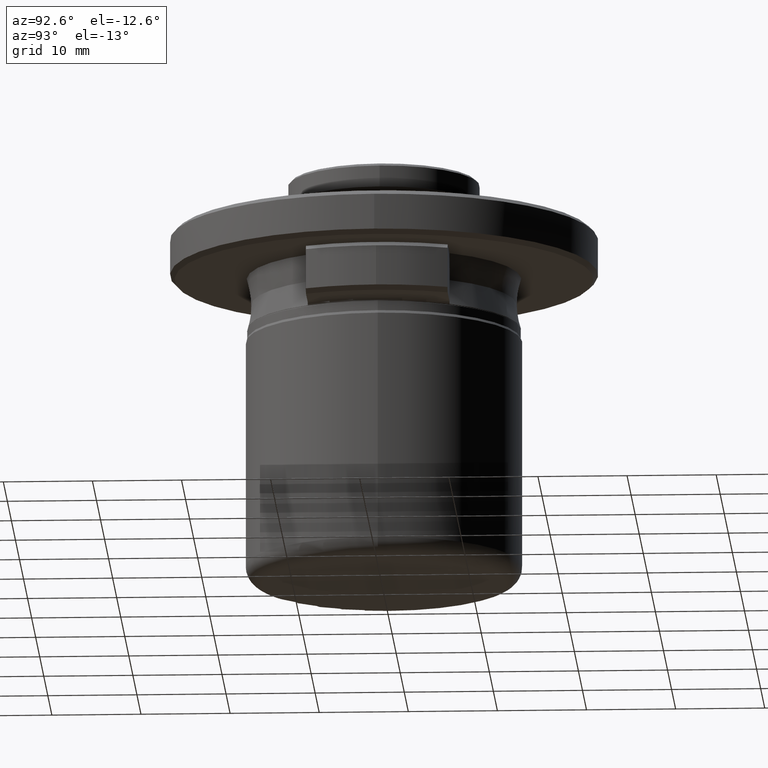
[diagram: clean part render]
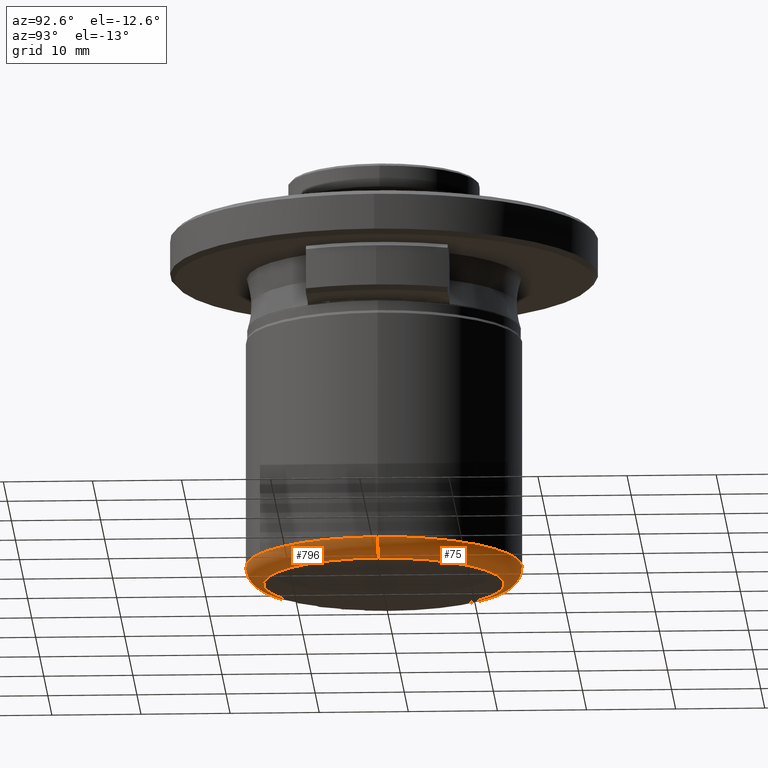
[diagram: same view with one multi-face feature highlighted, each face labeled with its STEP entity id]
A machine part, auxiliary view. The highlighted faces form ONE feature: a constant-radius fillet chain: 2 tangent blend faces with common blend radius 2 mm. The faces share edges in the B-rep.
Their STEP definitions:
[1] entity #75 (Torus):
#8 = VERTEX_POINT ( 'NONE', #242 ) ;
#43 = VERTEX_POINT ( 'NONE', #261 ) ;
#47 = CIRCLE ( 'NONE', #726, 13.50000000000000000 ) ;
#71 = AXIS2_PLACEMENT_3D ( 'NONE', #1226, #1512, #639 ) ;
#75 = ADVANCED_FACE ( 'NONE', ( #795 ), #881, .T. ) ;
#137 = DIRECTION ( 'NONE',  ( 1.000000000000000000, 0.0000000000000000000, 0.0000000000000000000 ) ) ;
#145 = ORIENTED_EDGE ( 'NONE', *, *, #869, .F. ) ;
#182 = EDGE_CURVE ( 'NONE', #1308, #43, #47, .T. ) ;
#228 = AXIS2_PLACEMENT_3D ( 'NONE', #1088, #428, #1633 ) ;
#242 = CARTESIAN_POINT ( 'NONE',  ( 15.50000000000000000, 0.0000000000000000000, -25.56151438499999900 ) ) ;
#261 = CARTESIAN_POINT ( 'NONE',  ( 13.50000000000000000, 0.0000000000000000000, -27.56151438499999900 ) ) ;
#329 = DIRECTION ( 'NONE',  ( -0.0000000000000000000, -0.0000000000000000000, -1.000000000000000000 ) ) ;
#351 = ORIENTED_EDGE ( 'NONE', *, *, #378, .F. ) ;
#378 = EDGE_CURVE ( 'NONE', #8, #1298, #1549, .T. ) ;
#381 = ORIENTED_EDGE ( 'NONE', *, *, #182, .F. ) ;
#428 = DIRECTION ( 'NONE',  ( 0.0000000000000000000, 0.0000000000000000000, 1.000000000000000000 ) ) ;
#480 = CARTESIAN_POINT ( 'NONE',  ( 0.0000000000000000000, 0.0000000000000000000, -25.56151438499999900 ) ) ;
#607 = CARTESIAN_POINT ( 'NONE',  ( -15.50000000000000000, 1.898202538678397600E-015, -25.56151438499999900 ) ) ;
#639 = DIRECTION ( 'NONE',  ( -1.000000000000000000, 1.224646799147353500E-016, 0.0000000000000000000 ) ) ;
#726 = AXIS2_PLACEMENT_3D ( 'NONE', #1010, #329, #1224 ) ;
#795 = FACE_OUTER_BOUND ( 'NONE', #1729, .T. ) ;
#869 = EDGE_CURVE ( 'NONE', #43, #8, #1494, .T. ) ;
#881 = TOROIDAL_SURFACE ( 'NONE', #228, 13.50000000000000000, 2.000000000000000000 ) ;
#990 = AXIS2_PLACEMENT_3D ( 'NONE', #480, #1213, #137 ) ;
#1010 = CARTESIAN_POINT ( 'NONE',  ( 0.0000000000000000000, 0.0000000000000000000, -27.56151438499999900 ) ) ;
#1021 = ORIENTED_EDGE ( 'NONE', *, *, #1736, .T. ) ;
#1088 = CARTESIAN_POINT ( 'NONE',  ( 0.0000000000000000000, 0.0000000000000000000, -25.56151438499999900 ) ) ;
#1213 = DIRECTION ( 'NONE',  ( 0.0000000000000000000, 0.0000000000000000000, 1.000000000000000000 ) ) ;
#1224 = DIRECTION ( 'NONE',  ( 1.000000000000000000, 0.0000000000000000000, 0.0000000000000000000 ) ) ;
#1226 = CARTESIAN_POINT ( 'NONE',  ( -13.50000000000000000, 1.653273178848926900E-015, -25.56151438499999900 ) ) ;
#1266 = CARTESIAN_POINT ( 'NONE',  ( 13.50000000000000000, 0.0000000000000000000, -25.56151438499999900 ) ) ;
#1298 = VERTEX_POINT ( 'NONE', #607 ) ;
#1308 = VERTEX_POINT ( 'NONE', #1920 ) ;
#1405 = AXIS2_PLACEMENT_3D ( 'NONE', #1266, #1485, #1856 ) ;
#1485 = DIRECTION ( 'NONE',  ( 0.0000000000000000000, -1.000000000000000000, 0.0000000000000000000 ) ) ;
#1494 = CIRCLE ( 'NONE', #1405, 2.000000000000001800 ) ;
#1512 = DIRECTION ( 'NONE',  ( 1.224646799147353200E-016, 1.000000000000000000, -0.0000000000000000000 ) ) ;
#1549 = CIRCLE ( 'NONE', #990, 15.50000000000000000 ) ;
#1633 = DIRECTION ( 'NONE',  ( 1.000000000000000000, 0.0000000000000000000, 0.0000000000000000000 ) ) ;
#1714 = CIRCLE ( 'NONE', #71, 2.000000000000000000 ) ;
#1729 = EDGE_LOOP ( 'NONE', ( #381, #1021, #351, #145 ) ) ;
#1736 = EDGE_CURVE ( 'NONE', #1308, #1298, #1714, .T. ) ;
#1856 = DIRECTION ( 'NONE',  ( 0.0000000000000000000, 0.0000000000000000000, -1.000000000000000000 ) ) ;
#1920 = CARTESIAN_POINT ( 'NONE',  ( -13.50000000000000000, 1.775737858763662000E-015, -27.56151438499999900 ) ) ;
[2] entity #796 (Torus):
#8 = VERTEX_POINT ( 'NONE', #242 ) ;
#43 = VERTEX_POINT ( 'NONE', #261 ) ;
#71 = AXIS2_PLACEMENT_3D ( 'NONE', #1226, #1512, #639 ) ;
#193 = ORIENTED_EDGE ( 'NONE', *, *, #421, .F. ) ;
#242 = CARTESIAN_POINT ( 'NONE',  ( 15.50000000000000000, 0.0000000000000000000, -25.56151438499999900 ) ) ;
#261 = CARTESIAN_POINT ( 'NONE',  ( 13.50000000000000000, 0.0000000000000000000, -27.56151438499999900 ) ) ;
#406 = CARTESIAN_POINT ( 'NONE',  ( 0.0000000000000000000, 0.0000000000000000000, -27.56151438499999900 ) ) ;
#407 = ORIENTED_EDGE ( 'NONE', *, *, #869, .T. ) ;
#415 = TOROIDAL_SURFACE ( 'NONE', #712, 13.50000000000000000, 2.000000000000000000 ) ;
#421 = EDGE_CURVE ( 'NONE', #1298, #8, #719, .T. ) ;
#569 = DIRECTION ( 'NONE',  ( 1.000000000000000000, 0.0000000000000000000, 0.0000000000000000000 ) ) ;
#607 = CARTESIAN_POINT ( 'NONE',  ( -15.50000000000000000, 1.898202538678397600E-015, -25.56151438499999900 ) ) ;
#639 = DIRECTION ( 'NONE',  ( -1.000000000000000000, 1.224646799147353500E-016, 0.0000000000000000000 ) ) ;
#653 = ORIENTED_EDGE ( 'NONE', *, *, #1036, .F. ) ;
#666 = DIRECTION ( 'NONE',  ( 1.000000000000000000, 0.0000000000000000000, 0.0000000000000000000 ) ) ;
#681 = AXIS2_PLACEMENT_3D ( 'NONE', #406, #1439, #569 ) ;
#707 = ORIENTED_EDGE ( 'NONE', *, *, #1736, .F. ) ;
#712 = AXIS2_PLACEMENT_3D ( 'NONE', #1019, #1178, #1903 ) ;
#719 = CIRCLE ( 'NONE', #1288, 15.50000000000000000 ) ;
#796 = ADVANCED_FACE ( 'NONE', ( #809 ), #415, .T. ) ;
#809 = FACE_OUTER_BOUND ( 'NONE', #1602, .T. ) ;
#869 = EDGE_CURVE ( 'NONE', #43, #8, #1494, .T. ) ;
#1001 = CARTESIAN_POINT ( 'NONE',  ( 0.0000000000000000000, 0.0000000000000000000, -25.56151438499999900 ) ) ;
#1019 = CARTESIAN_POINT ( 'NONE',  ( 0.0000000000000000000, 0.0000000000000000000, -25.56151438499999900 ) ) ;
#1036 = EDGE_CURVE ( 'NONE', #43, #1308, #1652, .T. ) ;
#1178 = DIRECTION ( 'NONE',  ( 0.0000000000000000000, 0.0000000000000000000, 1.000000000000000000 ) ) ;
#1226 = CARTESIAN_POINT ( 'NONE',  ( -13.50000000000000000, 1.653273178848926900E-015, -25.56151438499999900 ) ) ;
#1266 = CARTESIAN_POINT ( 'NONE',  ( 13.50000000000000000, 0.0000000000000000000, -25.56151438499999900 ) ) ;
#1288 = AXIS2_PLACEMENT_3D ( 'NONE', #1001, #1841, #666 ) ;
#1298 = VERTEX_POINT ( 'NONE', #607 ) ;
#1308 = VERTEX_POINT ( 'NONE', #1920 ) ;
#1405 = AXIS2_PLACEMENT_3D ( 'NONE', #1266, #1485, #1856 ) ;
#1439 = DIRECTION ( 'NONE',  ( -0.0000000000000000000, -0.0000000000000000000, -1.000000000000000000 ) ) ;
#1485 = DIRECTION ( 'NONE',  ( 0.0000000000000000000, -1.000000000000000000, 0.0000000000000000000 ) ) ;
#1494 = CIRCLE ( 'NONE', #1405, 2.000000000000001800 ) ;
#1512 = DIRECTION ( 'NONE',  ( 1.224646799147353200E-016, 1.000000000000000000, -0.0000000000000000000 ) ) ;
#1602 = EDGE_LOOP ( 'NONE', ( #707, #653, #407, #193 ) ) ;
#1652 = CIRCLE ( 'NONE', #681, 13.50000000000000000 ) ;
#1714 = CIRCLE ( 'NONE', #71, 2.000000000000000000 ) ;
#1736 = EDGE_CURVE ( 'NONE', #1308, #1298, #1714, .T. ) ;
#1841 = DIRECTION ( 'NONE',  ( 0.0000000000000000000, 0.0000000000000000000, 1.000000000000000000 ) ) ;
#1856 = DIRECTION ( 'NONE',  ( 0.0000000000000000000, 0.0000000000000000000, -1.000000000000000000 ) ) ;
#1903 = DIRECTION ( 'NONE',  ( 1.000000000000000000, 0.0000000000000000000, 0.0000000000000000000 ) ) ;
#1920 = CARTESIAN_POINT ( 'NONE',  ( -13.50000000000000000, 1.775737858763662000E-015, -27.56151438499999900 ) ) ;